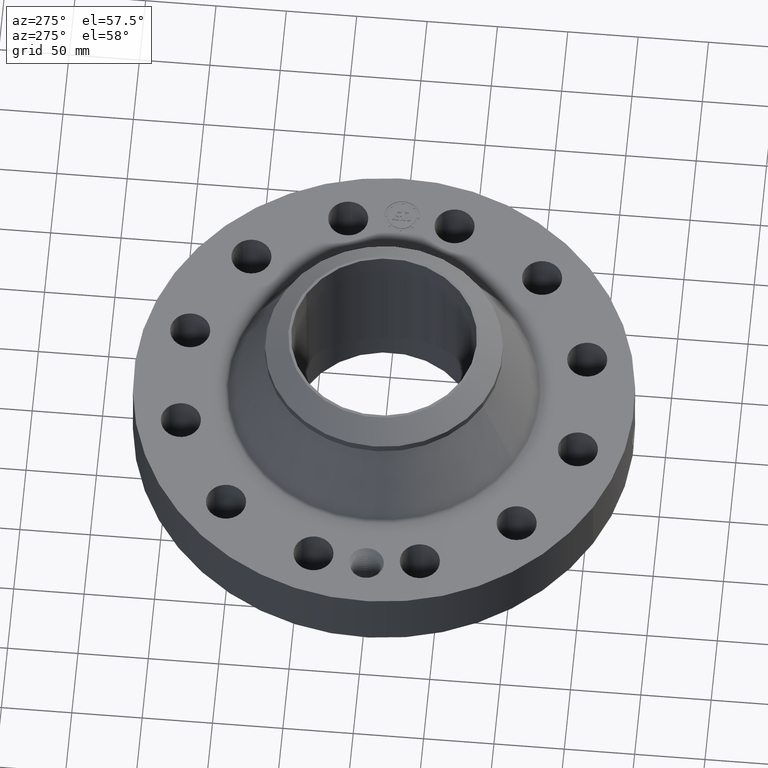
[diagram: clean part render]
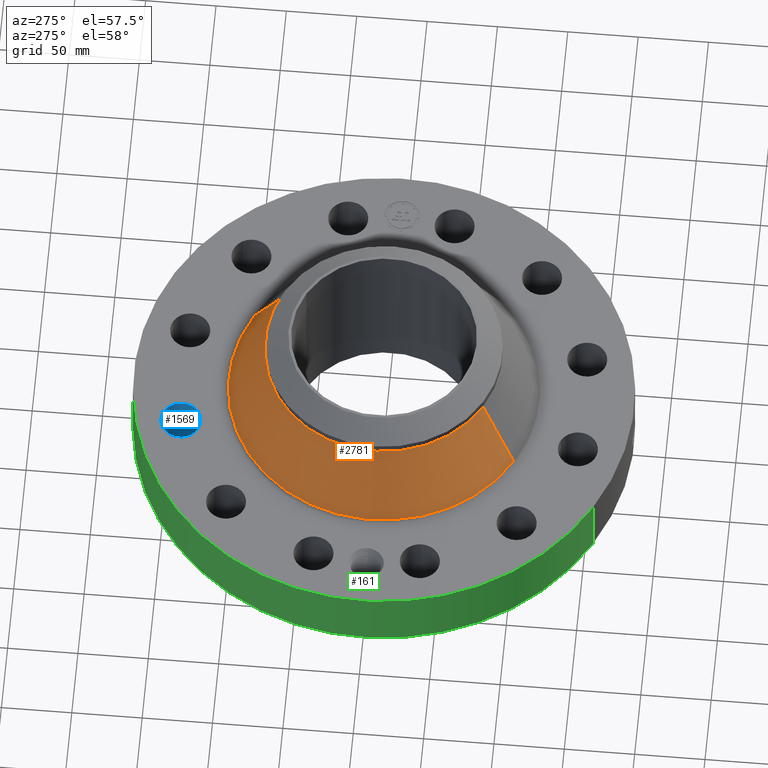
[diagram: same view with three faces highlighted in distinct colors, each labeled with its STEP entity id]
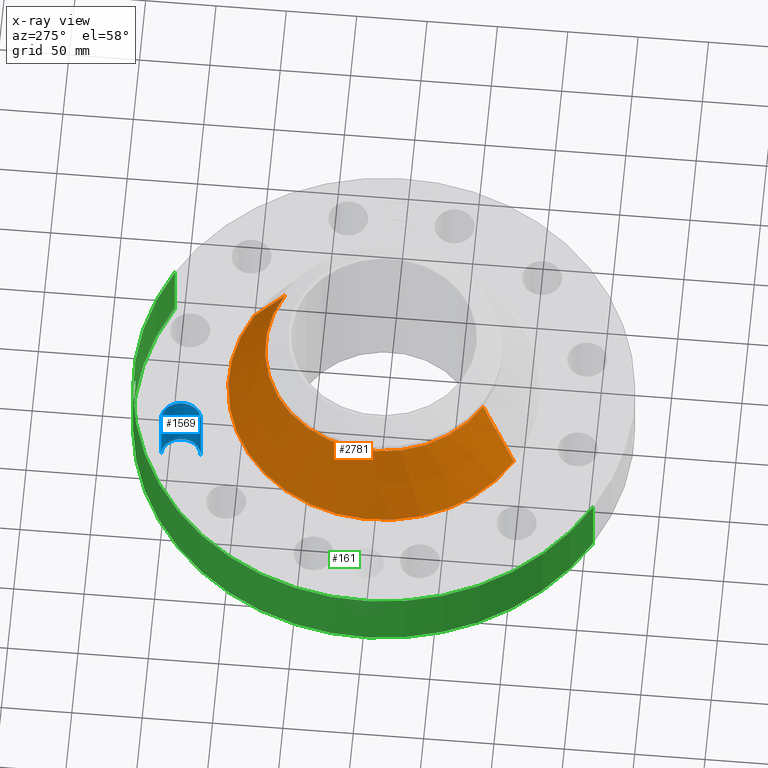
[diagram: x-ray of the same camera — body ghosted, the three highlighted faces saturated]
A machine part, auxiliary view with three faces highlighted in distinct colors.
The next image is the same camera in x-ray (body ghosted, the three faces saturated) — at least one of them is partly hidden behind the body in this view.
Their STEP definitions:

[orange] entity #2781 — the highlighted conical surface has half-angle 27.799 deg.
#2091=AXIS2_PLACEMENT_3D('Circle Axis2P3D',#2089,#2090,$) ;
#2742=AXIS2_PLACEMENT_3D('Cone Axis2P3D',#2739,#2740,#2741) ;
#2772=AXIS2_PLACEMENT_3D('Circle Axis2P3D',#2770,#2771,$) ;
#2067=CARTESIAN_POINT('Vertex',(2.08130106692,3.80979604818,2.19403586101)) ;
#2074=CARTESIAN_POINT('Vertex',(-2.08130106692,-3.80979604818,2.19403586101)) ;
#2089=CARTESIAN_POINT('Axis2P3D Location',(0.,0.,2.19403586101)) ;
#2739=CARTESIAN_POINT('Axis2P3D Location',(0.,0.,4.14057255362)) ;
#2744=CARTESIAN_POINT('Line Origine',(1.8352983637,3.35949112043,3.16730420731)) ;
#2748=CARTESIAN_POINT('Vertex',(1.58929566048,2.90918619268,4.14057255362)) ;
#2755=CARTESIAN_POINT('Vertex',(-1.58929566048,-2.90918619268,4.14057255362)) ;
#2758=CARTESIAN_POINT('Line Origine',(-1.8352983637,-3.35949112043,3.16730420731)) ;
#2770=CARTESIAN_POINT('Axis2P3D Location',(0.,0.,4.14057255362)) ;
#2090=DIRECTION('Axis2P3D Direction',(0.,0.,-0.0393700787402)) ;
#2740=DIRECTION('Axis2P3D Direction',(0.,0.,-0.0393700787402)) ;
#2741=DIRECTION('Axis2P3D XDirection',(-0.0188750212049,-0.0345504945626,0.)) ;
#2745=DIRECTION('Vector Direction',(0.00880270258647,0.0161132390024,-0.034826413195)) ;
#2759=DIRECTION('Vector Direction',(-0.00880270258647,-0.0161132390024,-0.034826413195)) ;
#2771=DIRECTION('Axis2P3D Direction',(0.,0.,-0.0393700787402)) ;
#2746=VECTOR('Line Direction',#2745,0.0393700787402) ;
#2760=VECTOR('Line Direction',#2759,0.0393700787402) ;
#2776=ORIENTED_EDGE('',*,*,#2093,.F.) ;
#2777=ORIENTED_EDGE('',*,*,#2762,.T.) ;
#2778=ORIENTED_EDGE('',*,*,#2774,.T.) ;
#2779=ORIENTED_EDGE('',*,*,#2750,.F.) ;
#2781=ADVANCED_FACE('PartBody',(#2780),#2743,.T.) ;
#2092=CIRCLE('generated circle',#2091,4.34123946124) ;
#2773=CIRCLE('generated circle',#2772,3.31500000001) ;
#2743=CONICAL_SURFACE('Cone',#2742,3.31500000001,0.485180261851) ;
#2093=EDGE_CURVE('',#2075,#2068,#2092,.T.) ;
#2750=EDGE_CURVE('',#2068,#2749,#2747,.F.) ;
#2762=EDGE_CURVE('',#2075,#2756,#2761,.F.) ;
#2774=EDGE_CURVE('',#2756,#2749,#2773,.T.) ;
#2775=EDGE_LOOP('',(#2776,#2777,#2778,#2779)) ;
#2780=FACE_OUTER_BOUND('',#2775,.T.) ;
#2747=LINE('Line',#2744,#2746) ;
#2761=LINE('Line',#2758,#2760) ;
#2068=VERTEX_POINT('',#2067) ;
#2075=VERTEX_POINT('',#2074) ;
#2749=VERTEX_POINT('',#2748) ;
#2756=VERTEX_POINT('',#2755) ;

[blue] entity #1569 — the highlighted cylindrical surface (edge-blend (fillet) strip) has radius 14.224 mm, axis along (0, 0, -1).
#397=AXIS2_PLACEMENT_3D('Circle Axis2P3D',#395,#396,$) ;
#779=AXIS2_PLACEMENT_3D('Circle Axis2P3D',#777,#778,$) ;
#1544=AXIS2_PLACEMENT_3D('Cylinder Axis2P3D',#1541,#1542,#1543) ;
#390=CARTESIAN_POINT('Vertex',(-1.47499542158,4.99422942656,0.250000000001)) ;
#392=CARTESIAN_POINT('Vertex',(-1.50142359711,6.1139175758,0.250000000001)) ;
#395=CARTESIAN_POINT('Axis2P3D Location',(-1.48820950935,5.55407350118,0.250000000001)) ;
#777=CARTESIAN_POINT('Axis2P3D Location',(-1.48820950935,5.55407350118,2.13000000001)) ;
#781=CARTESIAN_POINT('Vertex',(-1.50142359711,6.1139175758,2.13000000001)) ;
#783=CARTESIAN_POINT('Vertex',(-1.47499542158,4.99422942656,2.13000000001)) ;
#1541=CARTESIAN_POINT('Axis2P3D Location',(-1.48820950935,5.55407350118,2.12606299213)) ;
#1546=CARTESIAN_POINT('Line Origine',(-1.47499542158,4.99422942656,1.19)) ;
#1551=CARTESIAN_POINT('Line Origine',(-1.50142359711,6.1139175758,1.19)) ;
#396=DIRECTION('Axis2P3D Direction',(0.,0.,-0.0393700787402)) ;
#778=DIRECTION('Axis2P3D Direction',(0.,0.,-0.0393700787402)) ;
#1542=DIRECTION('Axis2P3D Direction',(0.,0.,-0.0393700787402)) ;
#1543=DIRECTION('Axis2P3D XDirection',(-0.000928999420902,0.039359116607,0.)) ;
#1547=DIRECTION('Vector Direction',(0.,0.,-0.0393700787402)) ;
#1552=DIRECTION('Vector Direction',(0.,0.,-0.0393700787402)) ;
#1548=VECTOR('Line Direction',#1547,0.0393700787402) ;
#1553=VECTOR('Line Direction',#1552,0.0393700787402) ;
#1564=ORIENTED_EDGE('',*,*,#1555,.F.) ;
#1565=ORIENTED_EDGE('',*,*,#399,.T.) ;
#1566=ORIENTED_EDGE('',*,*,#1550,.T.) ;
#1567=ORIENTED_EDGE('',*,*,#785,.F.) ;
#1569=ADVANCED_FACE('PartBody',(#1568),#1545,.F.) ;
#398=CIRCLE('generated circle',#397,0.560000000002) ;
#780=CIRCLE('generated circle',#779,0.560000000002) ;
#1545=CYLINDRICAL_SURFACE('generated cylinder',#1544,0.560000000002) ;
#399=EDGE_CURVE('',#393,#391,#398,.T.) ;
#785=EDGE_CURVE('',#782,#784,#780,.T.) ;
#1550=EDGE_CURVE('',#391,#784,#1549,.F.) ;
#1555=EDGE_CURVE('',#393,#782,#1554,.F.) ;
#1563=EDGE_LOOP('',(#1564,#1565,#1566,#1567)) ;
#1568=FACE_OUTER_BOUND('',#1563,.T.) ;
#1549=LINE('Line',#1546,#1548) ;
#1554=LINE('Line',#1551,#1553) ;
#391=VERTEX_POINT('',#390) ;
#393=VERTEX_POINT('',#392) ;
#782=VERTEX_POINT('',#781) ;
#784=VERTEX_POINT('',#783) ;

[green] entity #161 — the highlighted cylindrical surface (partial cylindrical patch) has radius 177.8 mm, axis along (0, 0, -1).
#38=AXIS2_PLACEMENT_3D('Cylinder Axis2P3D',#35,#36,#37) ;
#42=AXIS2_PLACEMENT_3D('Circle Axis2P3D',#40,#41,$) ;
#58=AXIS2_PLACEMENT_3D('Circle Axis2P3D',#56,#57,$) ;
#35=CARTESIAN_POINT('Axis2P3D Location',(0.,0.,2.43500000001)) ;
#40=CARTESIAN_POINT('Axis2P3D Location',(0.,0.,0.250000000001)) ;
#44=CARTESIAN_POINT('Vertex',(-3.35597877024,-6.14307793326,0.250000000001)) ;
#46=CARTESIAN_POINT('Vertex',(3.35597877024,6.14307793326,0.250000000001)) ;
#49=CARTESIAN_POINT('Line Origine',(-3.35597877024,-6.14307793326,1.19)) ;
#53=CARTESIAN_POINT('Vertex',(-3.35597877024,-6.14307793326,2.13000000001)) ;
#56=CARTESIAN_POINT('Axis2P3D Location',(0.,0.,2.13000000001)) ;
#60=CARTESIAN_POINT('Vertex',(3.35597877024,6.14307793326,2.13000000001)) ;
#63=CARTESIAN_POINT('Line Origine',(3.35597877024,6.14307793326,1.19)) ;
#75=CARTESIAN_POINT('Control Point',(-0.0601120350529,6.99974189122,1.28897143737)) ;
#76=CARTESIAN_POINT('Control Point',(-0.0405058560926,6.99991026418,1.29235411414)) ;
#77=CARTESIAN_POINT('Control Point',(-0.0206129798441,6.9999979269,1.29407814657)) ;
#78=CARTESIAN_POINT('Control Point',(-0.000716469793062,6.99999996336,1.29411849829)) ;
#79=CARTESIAN_POINT('Vertex',(-0.0600955473633,6.9997422972,1.28897457472)) ;
#81=CARTESIAN_POINT('Vertex',(-0.000716315630937,6.99999996338,1.29411850868)) ;
#85=CARTESIAN_POINT('Control Point',(-0.0600954381992,6.99974203373,1.28897398318)) ;
#86=CARTESIAN_POINT('Control Point',(-0.0987490530719,6.99941017779,1.28387831706)) ;
#87=CARTESIAN_POINT('Control Point',(-0.136583697015,6.99875337345,1.27175447518)) ;
#88=CARTESIAN_POINT('Control Point',(-0.17127040385,6.9979044327,1.2535403368)) ;
#89=CARTESIAN_POINT('Vertex',(-0.17127040385,6.9979044327,1.2535403368)) ;
#93=CARTESIAN_POINT('Control Point',(-0.0298591628815,6.99993631619,0.531104232962)) ;
#94=CARTESIAN_POINT('Control Point',(-0.0857114733186,6.99969807071,0.53822783971)) ;
#95=CARTESIAN_POINT('Control Point',(-0.139954243791,6.99890962562,0.555853352028)) ;
#96=CARTESIAN_POINT('Control Point',(-0.189778835818,6.99764560231,0.583433366993)) ;
#97=CARTESIAN_POINT('Control Point',(-0.278847600981,6.99469297569,0.656416870772)) ;
#98=CARTESIAN_POINT('Control Point',(-0.336085913755,6.99199490282,0.754473240526)) ;
#99=CARTESIAN_POINT('Control Point',(-0.355839513428,6.99095642126,0.80907498836)) ;
#100=CARTESIAN_POINT('Control Point',(-0.371298774074,6.99014814007,0.898390922011)) ;
#101=CARTESIAN_POINT('Control Point',(-0.362010091966,6.99063379514,0.986882010845)) ;
#102=CARTESIAN_POINT('Control Point',(-0.355272373107,6.99098604743,1.01885516594)) ;
#103=CARTESIAN_POINT('Control Point',(-0.330314360853,6.99224862663,1.09624565112)) ;
#104=CARTESIAN_POINT('Control Point',(-0.285911282127,6.99424285487,1.16472885385)) ;
#105=CARTESIAN_POINT('Control Point',(-0.252759205266,6.99558421891,1.20110996931)) ;
#106=CARTESIAN_POINT('Control Point',(-0.213966066258,6.99685947654,1.23112066076)) ;
#107=CARTESIAN_POINT('Control Point',(-0.17127040385,6.9979044327,1.2535403368)) ;
#108=CARTESIAN_POINT('Vertex',(-0.0298591628815,6.99993631619,0.531104232962)) ;
#112=CARTESIAN_POINT('Control Point',(-0.0298591628815,6.99993631619,0.531104232962)) ;
#113=CARTESIAN_POINT('Control Point',(-0.0198998119986,6.99997879914,0.530862574116)) ;
#114=CARTESIAN_POINT('Control Point',(-0.00993669240978,7.0000000039,0.53095285712)) ;
#115=CARTESIAN_POINT('Control Point',(2.72878353215E-006,7.00000000003,0.531374667805)) ;
#116=CARTESIAN_POINT('Vertex',(2.72878353782E-006,7.00000000003,0.531374667805)) ;
#120=CARTESIAN_POINT('Control Point',(0.193672295268,6.99732027582,0.58549456492)) ;
#121=CARTESIAN_POINT('Control Point',(0.149411695134,6.99854532365,0.560923800946)) ;
#122=CARTESIAN_POINT('Control Point',(0.101203555266,6.99950700729,0.543393922324)) ;
#123=CARTESIAN_POINT('Control Point',(0.0508390210277,6.99999998021,0.533532067162)) ;
#124=CARTESIAN_POINT('Control Point',(2.72878351969E-006,7.00000000003,0.531374667805)) ;
#125=CARTESIAN_POINT('Vertex',(0.193672295268,6.99732027582,0.58549456492)) ;
#129=CARTESIAN_POINT('Control Point',(0.193672295268,6.99732027582,0.58549456492)) ;
#130=CARTESIAN_POINT('Control Point',(0.22296542996,6.9965094985,0.601756312044)) ;
#131=CARTESIAN_POINT('Control Point',(0.250641712557,6.99559006644,0.620908337341)) ;
#132=CARTESIAN_POINT('Control Point',(0.276295998745,6.99460674747,0.642800260841)) ;
#133=CARTESIAN_POINT('Control Point',(0.343807235886,6.99173492095,0.71377430778)) ;
#134=CARTESIAN_POINT('Control Point',(0.387452115657,6.98932485113,0.803031423887)) ;
#135=CARTESIAN_POINT('Control Point',(0.403133421371,6.98836364674,0.867157379205)) ;
#136=CARTESIAN_POINT('Control Point',(0.40480849758,6.98831863958,0.981222298581)) ;
#137=CARTESIAN_POINT('Control Point',(0.365319570252,6.99049465419,1.08586133541)) ;
#138=CARTESIAN_POINT('Control Point',(0.341318349172,6.99175739382,1.12727318357)) ;
#139=CARTESIAN_POINT('Control Point',(0.272039738904,6.9949933436,1.21246044452)) ;
#140=CARTESIAN_POINT('Control Point',(0.178254799573,6.99805989279,1.26804752577)) ;
#141=CARTESIAN_POINT('Control Point',(0.119870710166,6.99936812508,1.28841755786)) ;
#142=CARTESIAN_POINT('Control Point',(0.0594802734711,7.0000002198,1.29707031141)) ;
#143=CARTESIAN_POINT('Control Point',(-2.58579355434E-005,6.99999999998,1.29415298434)) ;
#144=CARTESIAN_POINT('Vertex',(-2.58579355288E-005,6.99999999998,1.29415298434)) ;
#148=CARTESIAN_POINT('Control Point',(-0.000716315620338,6.99999996338,1.29411850867)) ;
#149=CARTESIAN_POINT('Control Point',(-0.000371110550666,6.9999999987,1.29413605812)) ;
#150=CARTESIAN_POINT('Control Point',(-2.58579418817E-005,6.99999999998,1.29415298434)) ;
#36=DIRECTION('Axis2P3D Direction',(0.,0.,-0.0393700787402)) ;
#37=DIRECTION('Axis2P3D XDirection',(0.0188750212049,0.0345504945626,0.)) ;
#41=DIRECTION('Axis2P3D Direction',(0.,0.,-0.0393700787402)) ;
#50=DIRECTION('Vector Direction',(0.,0.,-0.0393700787402)) ;
#57=DIRECTION('Axis2P3D Direction',(0.,0.,-0.0393700787402)) ;
#64=DIRECTION('Vector Direction',(0.,0.,-0.0393700787402)) ;
#51=VECTOR('Line Direction',#50,0.0393700787402) ;
#65=VECTOR('Line Direction',#64,0.0393700787402) ;
#69=ORIENTED_EDGE('',*,*,#48,.F.) ;
#70=ORIENTED_EDGE('',*,*,#55,.T.) ;
#71=ORIENTED_EDGE('',*,*,#62,.T.) ;
#72=ORIENTED_EDGE('',*,*,#67,.F.) ;
#153=ORIENTED_EDGE('',*,*,#83,.F.) ;
#154=ORIENTED_EDGE('',*,*,#91,.T.) ;
#155=ORIENTED_EDGE('',*,*,#110,.F.) ;
#156=ORIENTED_EDGE('',*,*,#118,.T.) ;
#157=ORIENTED_EDGE('',*,*,#127,.F.) ;
#158=ORIENTED_EDGE('',*,*,#146,.T.) ;
#159=ORIENTED_EDGE('',*,*,#151,.F.) ;
#160=FACE_BOUND('',#152,.T.) ;
#161=ADVANCED_FACE('PartBody',(#73,#160),#39,.T.) ;
#74=B_SPLINE_CURVE_WITH_KNOTS('',3,(#75,#76,#77,#78),.UNSPECIFIED.,.F.,.U.,(4,4),(4.31417608807,6.52151413289),.UNSPECIFIED.) ;
#84=B_SPLINE_CURVE_WITH_KNOTS('',3,(#85,#86,#87,#88),.UNSPECIFIED.,.F.,.U.,(4,4),(0.,4.38071082665),.UNSPECIFIED.) ;
#92=B_SPLINE_CURVE_WITH_KNOTS('',5,(#93,#94,#95,#96,#97,#98,#99,#100,#101,#102,#103,#104,#105,#106,#107),.UNSPECIFIED.,.F.,.U.,(6,3,3,3,6),(0.,9.78563712756,20.1175567791,26.1192589787,35.1062441488),.UNSPECIFIED.) ;
#111=B_SPLINE_CURVE_WITH_KNOTS('',3,(#112,#113,#114,#115),.UNSPECIFIED.,.F.,.U.,(4,4),(0.,1.03878574803),.UNSPECIFIED.) ;
#119=B_SPLINE_CURVE_WITH_KNOTS('',4,(#120,#121,#122,#123,#124),.UNSPECIFIED.,.F.,.U.,(5,5),(0.,7.08398271188),.UNSPECIFIED.) ;
#128=B_SPLINE_CURVE_WITH_KNOTS('',5,(#129,#130,#131,#132,#133,#134,#135,#136,#137,#138,#139,#140,#141,#142,#143),.UNSPECIFIED.,.F.,.U.,(6,3,3,3,6),(0.,5.86051867524,17.0472821829,25.4475964333,36.5705256736),.UNSPECIFIED.) ;
#147=B_SPLINE_CURVE_WITH_KNOTS('',2,(#148,#149,#150),.UNSPECIFIED.,.F.,.U.,(3,3),(1.06180470438,1.08761865297),.UNSPECIFIED.) ;
#43=CIRCLE('generated circle',#42,7.00000000003) ;
#59=CIRCLE('generated circle',#58,7.00000000003) ;
#39=CYLINDRICAL_SURFACE('generated cylinder',#38,7.00000000003) ;
#48=EDGE_CURVE('',#45,#47,#43,.T.) ;
#55=EDGE_CURVE('',#45,#54,#52,.F.) ;
#62=EDGE_CURVE('',#54,#61,#59,.T.) ;
#67=EDGE_CURVE('',#47,#61,#66,.F.) ;
#83=EDGE_CURVE('',#80,#82,#74,.T.) ;
#91=EDGE_CURVE('',#80,#90,#84,.T.) ;
#110=EDGE_CURVE('',#109,#90,#92,.T.) ;
#118=EDGE_CURVE('',#109,#117,#111,.T.) ;
#127=EDGE_CURVE('',#126,#117,#119,.T.) ;
#146=EDGE_CURVE('',#126,#145,#128,.T.) ;
#151=EDGE_CURVE('',#82,#145,#147,.T.) ;
#68=EDGE_LOOP('',(#69,#70,#71,#72)) ;
#152=EDGE_LOOP('',(#153,#154,#155,#156,#157,#158,#159)) ;
#73=FACE_OUTER_BOUND('',#68,.T.) ;
#52=LINE('Line',#49,#51) ;
#66=LINE('Line',#63,#65) ;
#45=VERTEX_POINT('',#44) ;
#47=VERTEX_POINT('',#46) ;
#54=VERTEX_POINT('',#53) ;
#61=VERTEX_POINT('',#60) ;
#80=VERTEX_POINT('',#79) ;
#82=VERTEX_POINT('',#81) ;
#90=VERTEX_POINT('',#89) ;
#109=VERTEX_POINT('',#108) ;
#117=VERTEX_POINT('',#116) ;
#126=VERTEX_POINT('',#125) ;
#145=VERTEX_POINT('',#144) ;